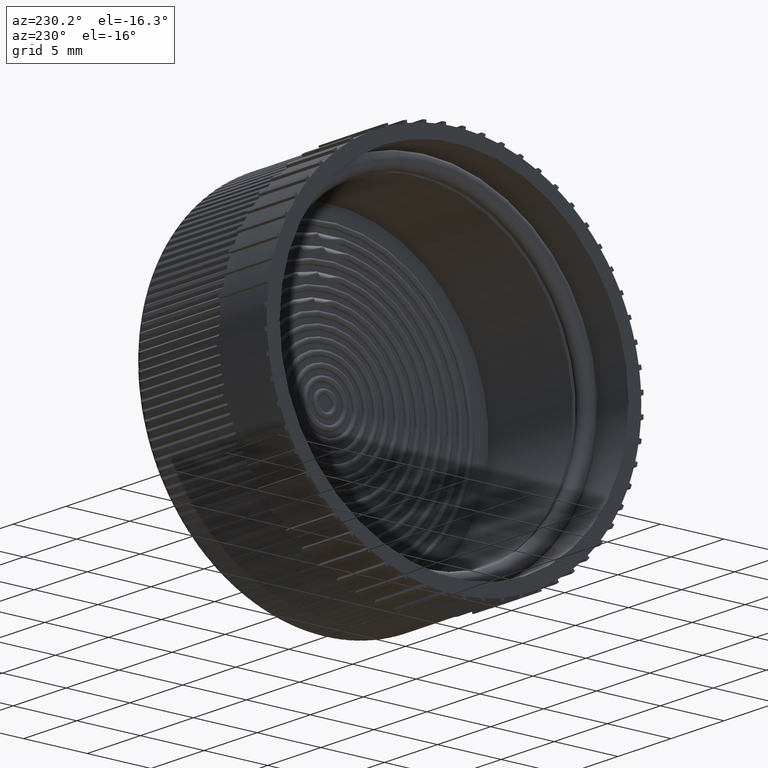
[diagram: clean part render]
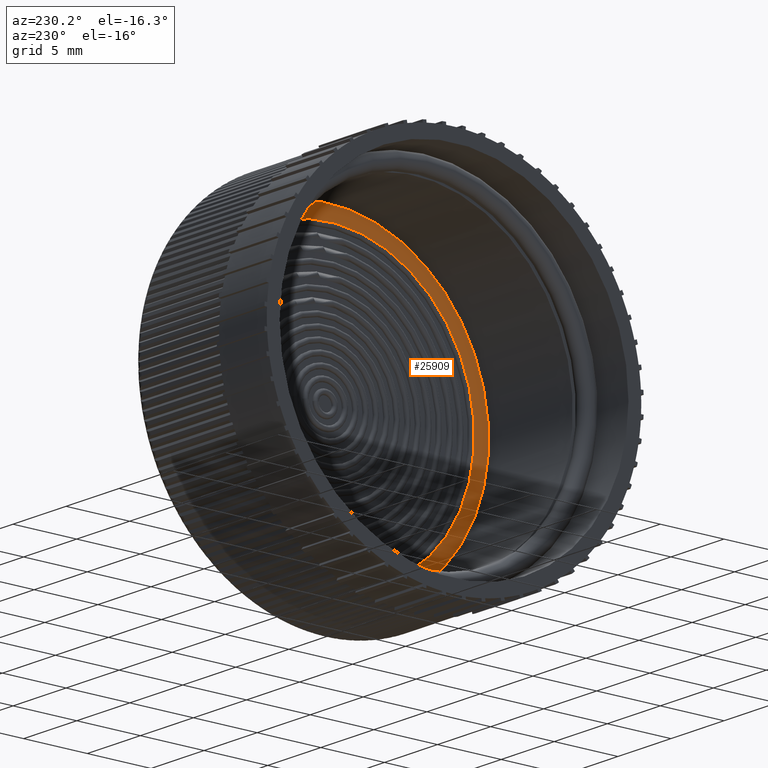
[diagram: same view with one face highlighted and labeled with its STEP entity id]
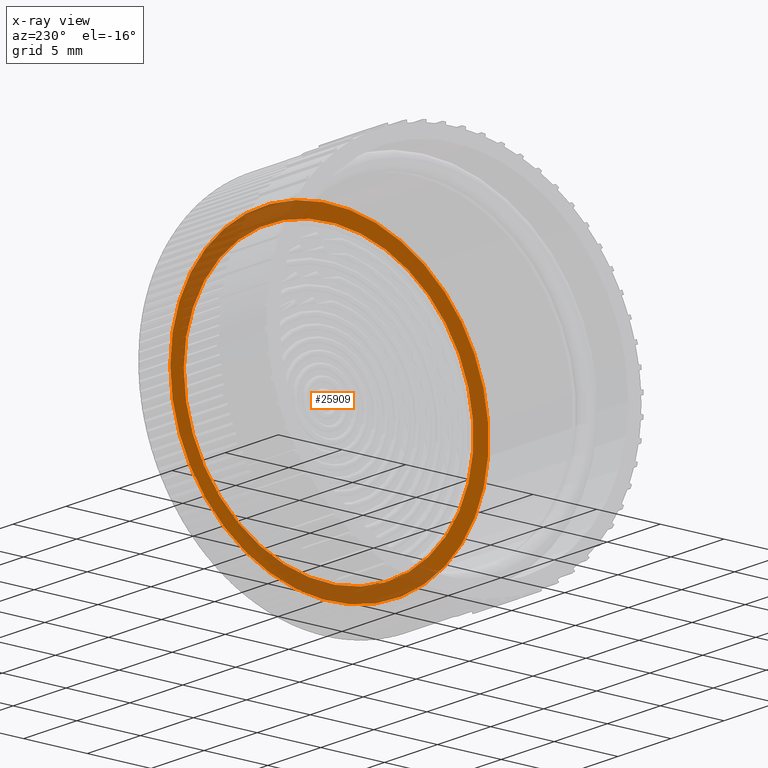
[diagram: x-ray of the same camera — body ghosted, the highlighted face saturated]
A machine part, auxiliary view. The second image highlights one B-rep face of the part: STEP entity #25909.
The next image is the same camera in x-ray: the body ghosted, the highlighted face saturated — about 38% of this face is hidden behind the body in this view.
In plain terms, the highlighted face is a freeform B-spline surface patch.
Its self-contained STEP definition (entity closure, byte-faithful):
#25863=CARTESIAN_POINT('',(3.593526459426673,19.429321907853240,0.0));
#25864=VERTEX_POINT('',#25863);
#25865=CARTESIAN_POINT('',(3.593526459426673,8.056008623628809,0.0));
#25866=DIRECTION('',(1.0,0.0,0.0));
#25867=DIRECTION('',(0.0,1.0,0.0));
#25868=AXIS2_PLACEMENT_3D('',#25865,#25866,#25867);
#25869=CIRCLE('',#25868,11.373313284224428);
#25870=EDGE_CURVE('',#25864,#25864,#25869,.T.);
#25878=CARTESIAN_POINT('',(3.057787972449603,-4.410469591314023,-12.500000000000000));
#25879=CARTESIAN_POINT('',(3.972621791432914,-4.477603299962581,0.0));
#25880=CARTESIAN_POINT('',(3.057787972449603,-4.410469591314023,12.500000000000000));
#25881=CARTESIAN_POINT('',(3.972621791432886,8.056008623628808,-12.500000000000000));
#25882=CARTESIAN_POINT('',(4.892382117005013,8.056008623628808,0.0));
#25883=CARTESIAN_POINT('',(3.972621791432886,8.056008623628808,12.500000000000000));
#25884=CARTESIAN_POINT('',(3.057787972449603,20.522486838571638,-12.500000000000000));
#25885=CARTESIAN_POINT('',(3.972621791432914,20.589620547220193,0.0));
#25886=CARTESIAN_POINT('',(3.057787972449603,20.522486838571638,12.500000000000000));
#25894=(BOUNDED_SURFACE()B_SPLINE_SURFACE(2,2,((#25878,#25881,#25884),(#25879,#25882,#25885),(#25880,#25883,#25886)),.UNSPECIFIED.,.F.,.F.,.U.)B_SPLINE_SURFACE_WITH_KNOTS((3,3),(3,3),(-0.073252198418401,0.073252198418401),(0.0,0.146504396836801),.UNSPECIFIED.)GEOMETRIC_REPRESENTATION_ITEM()RATIONAL_B_SPLINE_SURFACE(((1.0,0.997318257195427,1.0),(0.997318257195458,0.994643706135355,0.997318257195458),(1.0,0.997318257195427,1.0)))REPRESENTATION_ITEM('')SURFACE());
#25895=CARTESIAN_POINT('',(3.514590721177907,20.556008623628806,0.0));
#25896=VERTEX_POINT('',#25895);
#25897=CARTESIAN_POINT('',(3.514590721177906,8.056008623628809,0.0));
#25898=DIRECTION('',(1.0,0.0,0.0));
#25899=DIRECTION('',(0.0,1.0,0.0));
#25900=AXIS2_PLACEMENT_3D('',#25897,#25898,#25899);
#25901=CIRCLE('',#25900,12.499999999999998);
#25902=EDGE_CURVE('',#25896,#25896,#25901,.T.);
#25903=ORIENTED_EDGE('',*,*,#25902,.F.);
#25904=EDGE_LOOP('',(#25903));
#25905=FACE_OUTER_BOUND('',#25904,.T.);
#25906=ORIENTED_EDGE('',*,*,#25870,.T.);
#25907=EDGE_LOOP('',(#25906));
#25908=FACE_BOUND('',#25907,.T.);
#25909=ADVANCED_FACE('',(#25905,#25908),#25894,.T.);